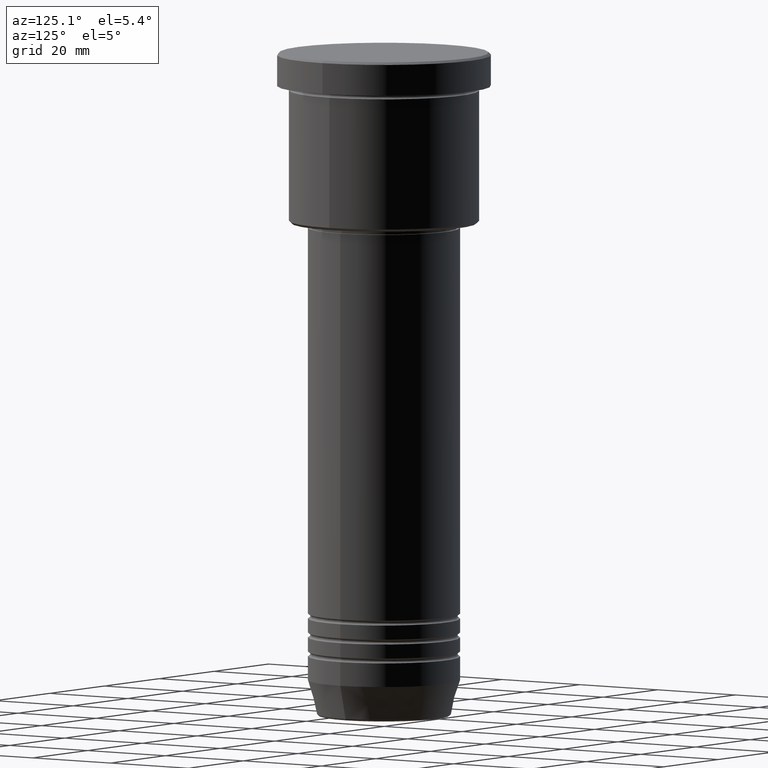
[diagram: clean part render]
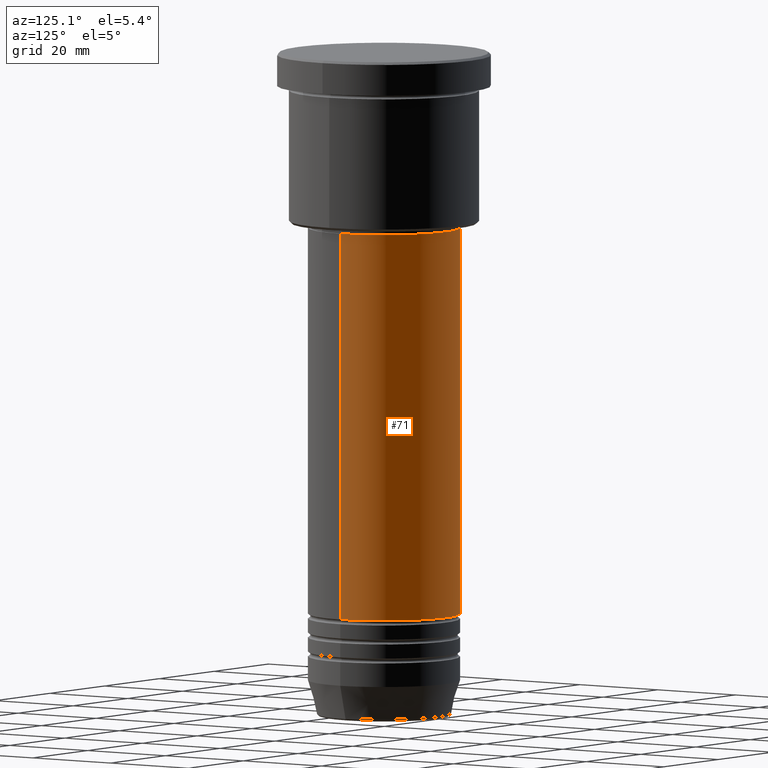
[diagram: same view with one face highlighted and labeled with its STEP entity id]
A machine part, auxiliary view. The second image highlights one B-rep face of the part: STEP entity #71.
In plain terms, the highlighted cylindrical surface (partial cylindrical patch) has radius 16 mm, axis along (-0, -0, 1).
Its self-contained STEP definition (entity closure, byte-faithful):
#4 = DIRECTION ( 'NONE',  ( -0.000000000000000000, -0.000000000000000000, 1.000000000000000000 ) ) ;
#44 = VERTEX_POINT ( 'NONE', #284 ) ;
#50 = CARTESIAN_POINT ( 'NONE',  ( -16.00000000000000000, 1.959434878635765131E-15, 0.000000000000000000 ) ) ;
#71 = ADVANCED_FACE ( 'NONE', ( #899 ), #641, .T. ) ;
#140 = DIRECTION ( 'NONE',  ( 1.000000000000000000, 0.000000000000000000, 0.000000000000000000 ) ) ;
#148 = EDGE_CURVE ( 'NONE', #363, #804, #440, .T. ) ;
#210 = ORIENTED_EDGE ( 'NONE', *, *, #670, .T. ) ;
#239 = CARTESIAN_POINT ( 'NONE',  ( -16.00000000000000000, 1.959434878635765131E-15, -37.00000000000002842 ) ) ;
#284 = CARTESIAN_POINT ( 'NONE',  ( 16.00000000000000000, 0.000000000000000000, -118.5000000000000000 ) ) ;
#313 = AXIS2_PLACEMENT_3D ( 'NONE', #456, #471, #831 ) ;
#335 = VECTOR ( 'NONE', #350, 1000.000000000000000 ) ;
#350 = DIRECTION ( 'NONE',  ( -0.000000000000000000, -0.000000000000000000, 1.000000000000000000 ) ) ;
#354 = CARTESIAN_POINT ( 'NONE',  ( -16.00000000000000000, 1.959434878635765131E-15, -118.5000000000000000 ) ) ;
#363 = VERTEX_POINT ( 'NONE', #354 ) ;
#365 = ORIENTED_EDGE ( 'NONE', *, *, #1012, .F. ) ;
#396 = CIRCLE ( 'NONE', #553, 16.00000000000000000 ) ;
#425 = DIRECTION ( 'NONE',  ( -0.000000000000000000, -0.000000000000000000, 1.000000000000000000 ) ) ;
#426 = DIRECTION ( 'NONE',  ( -0.000000000000000000, -0.000000000000000000, 1.000000000000000000 ) ) ;
#440 = LINE ( 'NONE', #50, #335 ) ;
#456 = CARTESIAN_POINT ( 'NONE',  ( 0.000000000000000000, 0.000000000000000000, 0.000000000000000000 ) ) ;
#457 = VECTOR ( 'NONE', #426, 1000.000000000000000 ) ;
#464 = EDGE_CURVE ( 'NONE', #44, #1094, #1049, .T. ) ;
#471 = DIRECTION ( 'NONE',  ( -0.000000000000000000, -0.000000000000000000, 1.000000000000000000 ) ) ;
#504 = CARTESIAN_POINT ( 'NONE',  ( 16.00000000000000000, 0.000000000000000000, -37.00000000000002842 ) ) ;
#523 = CARTESIAN_POINT ( 'NONE',  ( 0.000000000000000000, 0.000000000000000000, -118.5000000000000000 ) ) ;
#553 = AXIS2_PLACEMENT_3D ( 'NONE', #1010, #4, #729 ) ;
#641 = CYLINDRICAL_SURFACE ( 'NONE', #313, 16.00000000000000000 ) ;
#670 = EDGE_CURVE ( 'NONE', #44, #363, #991, .T. ) ;
#729 = DIRECTION ( 'NONE',  ( 1.000000000000000000, 0.000000000000000000, 0.000000000000000000 ) ) ;
#735 = ORIENTED_EDGE ( 'NONE', *, *, #464, .F. ) ;
#769 = ORIENTED_EDGE ( 'NONE', *, *, #148, .T. ) ;
#804 = VERTEX_POINT ( 'NONE', #239 ) ;
#831 = DIRECTION ( 'NONE',  ( 1.000000000000000000, 0.000000000000000000, 0.000000000000000000 ) ) ;
#870 = AXIS2_PLACEMENT_3D ( 'NONE', #523, #425, #140 ) ;
#899 = FACE_OUTER_BOUND ( 'NONE', #902, .T. ) ;
#902 = EDGE_LOOP ( 'NONE', ( #210, #769, #365, #735 ) ) ;
#982 = CARTESIAN_POINT ( 'NONE',  ( 16.00000000000000000, 0.000000000000000000, 0.000000000000000000 ) ) ;
#991 = CIRCLE ( 'NONE', #870, 16.00000000000000000 ) ;
#1010 = CARTESIAN_POINT ( 'NONE',  ( 0.000000000000000000, 0.000000000000000000, -37.00000000000002842 ) ) ;
#1012 = EDGE_CURVE ( 'NONE', #1094, #804, #396, .T. ) ;
#1049 = LINE ( 'NONE', #982, #457 ) ;
#1094 = VERTEX_POINT ( 'NONE', #504 ) ;